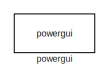
[diagram: root canvas - part 1/3, top center region]
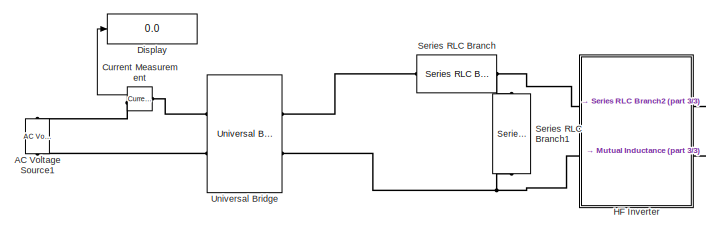
[diagram: root canvas - part 2/3, bottom left region]
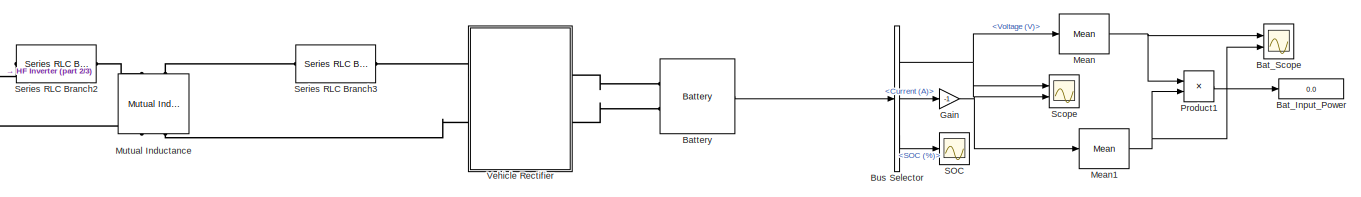
[diagram: root canvas - part 3/3, bottom right region]
MODEL slx_b28d052fbea8
KIND model
CONFIG AbsTol = auto
CONFIG EnableMultiTasking = off
CONFIG FixedStep = auto
CONFIG MaxStep = auto
CONFIG MinStep = auto
CONFIG RelTol = 1e-3
CONFIG SampleTimeConstraint = Unconstrained
CONFIG Solver = VariableStepAuto
CONFIG SolverName = VariableStepAuto
CONFIG StartTime = 0.0
CONFIG StopTime = 5.0
BLOCK [Reference] AC Voltage Source1  REF=powerlib/Electrical
Sources/AC Voltage Source
  Ports = [0, 0, 0, 0, 0, 1, 1]
  SourceBlock = powerlib/Electrical\nSources/AC Voltage Source
  SourceProductBaseCode = PS
  SourceProductName = Simscape Power Systems
  SourceType = AC Voltage Source
BLOCK [Display] Bat_Input_Power
  Decimation = 1
  Ports = [1]
BLOCK [Scope] Bat_Scope
  Floating = off
  NumInputPorts = 2
  Ports = [2]
  ScopeSpecificationString = Simulink.scopes.TimeScopeBlockCfg('CurrentConfiguration', extmgr.ConfigurationSet(extmgr.Configuration('Core','General UI',true,'FigureColor',[1 1 1]),extmgr.Configuration('Core','Source UI',true),extmgr.Configuration('Sources','WiredSimulink',true,'DataLoggingVariableName','ScopeData2'),extmgr.Configuration('Visuals','Time Domain',true,'TimeAxisLabels','All','SerializedDisplays',{struct('MinYLimR...<+2285ch>
BLOCK [Reference] Battery  REF=electricdrivelib/Extra Sources/Battery
  Ports = [0, 1, 0, 0, 0, 2]
  SourceBlock = electricdrivelib/Extra Sources/Battery
  SourceProductBaseCode = PS
  SourceProductName = Simscape Power Systems
  SourceType = Battery
BLOCK [BusSelector] Bus Selector
  OutputAsBus = off
  OutputSignals = Voltage (V),Current (A),SOC (%)
  Ports = [1, 3]
BLOCK [Reference] Current Measurement  REF=powerlib/Measurements/Current Measurement
  Ports = [0, 1, 0, 0, 0, 1, 1]
  SourceBlock = powerlib/Measurements/Current Measurement
  SourceProductBaseCode = PS
  SourceProductName = Simscape Power Systems
  SourceType = Current Measurement
  UserDataPersistent = on
BLOCK [Display] Display
  Decimation = 1
  Ports = [1]
BLOCK [Gain] Gain
  Gain = -1
  OutDataTypeStr = Inherit: Inherit via internal rule
  ParamDataTypeStr = Inherit: Inherit via internal rule
  SaturateOnIntegerOverflow = off
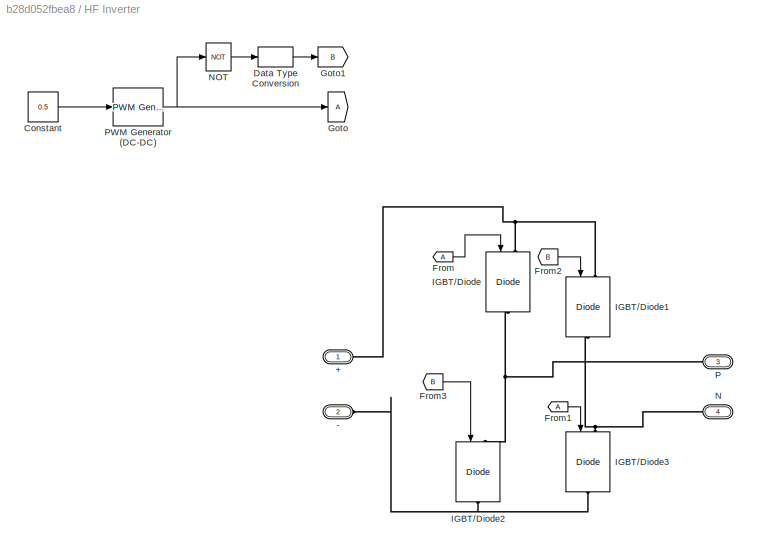
BLOCK [SubSystem] HF Inverter
  Ports = [0, 0, 0, 0, 0, 2, 2]
  RequestExecContextInheritance = off
BLOCK [PMIOPort] HF Inverter/+
  Side = Left
BLOCK [PMIOPort] HF Inverter/-
  Port = 2
  Side = Left
BLOCK [Constant] HF Inverter/Constant
  Value = 0.5
BLOCK [DataTypeConversion] HF Inverter/Data Type Conversion
  OutDataTypeStr = double
  RndMeth = Floor
  SaturateOnIntegerOverflow = off
BLOCK [From] HF Inverter/From
BLOCK [From] HF Inverter/From1
BLOCK [From] HF Inverter/From2
  GotoTag = B
BLOCK [From] HF Inverter/From3
  GotoTag = B
BLOCK [Goto] HF Inverter/Goto
BLOCK [Goto] HF Inverter/Goto1
  GotoTag = B
BLOCK [Reference] HF Inverter/IGBT//Diode  REF=powerlib/Power
Electronics/IGBT//Diode
  Ports = [1, 0, 0, 0, 0, 1, 1]
  SourceBlock = powerlib/Power\nElectronics/IGBT//Diode
  SourceProductBaseCode = PS
  SourceProductName = Simscape Power Systems
  SourceType = IGBT/Diode
BLOCK [Reference] HF Inverter/IGBT//Diode1  REF=powerlib/Power
Electronics/IGBT//Diode
  Ports = [1, 0, 0, 0, 0, 1, 1]
  SourceBlock = powerlib/Power\nElectronics/IGBT//Diode
  SourceProductBaseCode = PS
  SourceProductName = Simscape Power Systems
  SourceType = IGBT/Diode
BLOCK [Reference] HF Inverter/IGBT//Diode2  REF=powerlib/Power
Electronics/IGBT//Diode
  Ports = [1, 0, 0, 0, 0, 1, 1]
  SourceBlock = powerlib/Power\nElectronics/IGBT//Diode
  SourceProductBaseCode = PS
  SourceProductName = Simscape Power Systems
  SourceType = IGBT/Diode
BLOCK [Reference] HF Inverter/IGBT//Diode3  REF=powerlib/Power
Electronics/IGBT//Diode
  Ports = [1, 0, 0, 0, 0, 1, 1]
  SourceBlock = powerlib/Power\nElectronics/IGBT//Diode
  SourceProductBaseCode = PS
  SourceProductName = Simscape Power Systems
  SourceType = IGBT/Diode
BLOCK [PMIOPort] HF Inverter/N
  Port = 4
  Side = Right
BLOCK [Logic] HF Inverter/NOT 
  AllPortsSameDT = off
  IconShape = distinctive
  Operator = NOT
  OutDataTypeStr = boolean
  Ports = [1, 1]
BLOCK [PMIOPort] HF Inverter/P
  Port = 3
  Side = Right
BLOCK [Reference] HF Inverter/PWM Generator (DC-DC)  REF=powerlib_meascontrol/Pulse & Signal
Generators/PWM Generator
(DC-DC)
  Ports = [1, 1]
  SourceBlock = powerlib_meascontrol/Pulse & Signal\nGenerators/PWM Generator\n(DC-DC)
  SourceProductBaseCode = PS
  SourceProductName = Simscape Power Systems
  SourceType = PWM Generator (DC-DC)
BLOCK [Reference] Mean  REF=powerlib_meascontrol/Measurements/Mean
  Ports = [1, 1]
  SourceBlock = powerlib_meascontrol/Measurements/Mean
  SourceProductBaseCode = PS
  SourceProductName = Simscape Power Systems
  SourceType = Mean
BLOCK [Reference] Mean1  REF=powerlib_meascontrol/Measurements/Mean
  Ports = [1, 1]
  SourceBlock = powerlib_meascontrol/Measurements/Mean
  SourceProductBaseCode = PS
  SourceProductName = Simscape Power Systems
  SourceType = Mean
BLOCK [Reference] Mutual Inductance  REF=powerlib/Elements/Mutual Inductance
  AttributesFormatString = \n
  Ports = [0, 0, 0, 0, 0, 2, 2]
  SourceBlock = powerlib/Elements/Mutual Inductance
  SourceProductBaseCode = PS
  SourceProductName = Simscape Power Systems
  SourceType = Mutual Inductance
BLOCK [Product] Product1
  InputSameDT = off
  OutDataTypeStr = Inherit: Inherit via internal rule
  Ports = [2, 1]
  RndMeth = Floor
  SaturateOnIntegerOverflow = off
BLOCK [Scope] SOC
  Floating = off
  NumInputPorts = 1
  Ports = [1]
  ScopeSpecificationString = Simulink.scopes.TimeScopeBlockCfg('CurrentConfiguration', extmgr.ConfigurationSet(extmgr.Configuration('Core','General UI',true,'FigureColor',[1 1 1]),extmgr.Configuration('Core','Source UI',true),extmgr.Configuration('Sources','WiredSimulink',true),extmgr.Configuration('Visuals','Time Domain',true,'TimeAxisLabels','All','SerializedDisplays',{struct('MinYLimReal','79.99778','MaxYLimReal','80.01974...<+1639ch>
BLOCK [Scope] Scope
  Floating = off
  NumInputPorts = 2
  Ports = [2]
  ScopeSpecificationString = Simulink.scopes.TimeScopeBlockCfg('CurrentConfiguration', extmgr.ConfigurationSet(extmgr.Configuration('Core','General UI',true),extmgr.Configuration('Core','Source UI',true),extmgr.Configuration('Sources','WiredSimulink',true,'DataLoggingVariableName','ScopeData1'),extmgr.Configuration('Visuals','Time Domain',true,'SerializedDisplays',{struct('MinYLimReal','430.85531','MaxYLimReal','431.62771','Y...<+2071ch>
BLOCK [Reference] Series RLC Branch  REF=powerlib/Elements/Series RLC Branch
  Ports = [0, 0, 0, 0, 0, 1, 1]
  SourceBlock = powerlib/Elements/Series RLC Branch
  SourceProductBaseCode = PS
  SourceProductName = Simscape Power Systems
  SourceType = Series RLC Branch
BLOCK [Reference] Series RLC Branch1  REF=powerlib/Elements/Series RLC Branch
  Ports = [0, 0, 0, 0, 0, 1, 1]
  SourceBlock = powerlib/Elements/Series RLC Branch
  SourceProductBaseCode = PS
  SourceProductName = Simscape Power Systems
  SourceType = Series RLC Branch
BLOCK [Reference] Series RLC Branch2  REF=powerlib/Elements/Series RLC Branch
  Ports = [0, 0, 0, 0, 0, 1, 1]
  SourceBlock = powerlib/Elements/Series RLC Branch
  SourceProductBaseCode = PS
  SourceProductName = Simscape Power Systems
  SourceType = Series RLC Branch
BLOCK [Reference] Series RLC Branch3  REF=powerlib/Elements/Series RLC Branch
  Ports = [0, 0, 0, 0, 0, 1, 1]
  SourceBlock = powerlib/Elements/Series RLC Branch
  SourceProductBaseCode = PS
  SourceProductName = Simscape Power Systems
  SourceType = Series RLC Branch
BLOCK [Reference] Universal Bridge  REF=powerlib/Power
Electronics/Universal Bridge
  Ports = [0, 0, 0, 0, 0, 2, 2]
  SourceBlock = powerlib/Power\nElectronics/Universal Bridge
  SourceProductBaseCode = PS
  SourceProductName = Simscape Power Systems
  SourceType = Universal Bridge
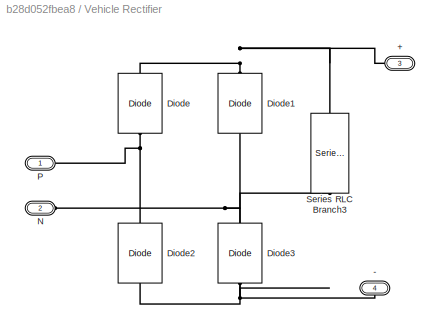
BLOCK [SubSystem] Vehicle Rectifier
  Ports = [0, 0, 0, 0, 0, 2, 2]
  RequestExecContextInheritance = off
BLOCK [PMIOPort] Vehicle Rectifier/+
  Port = 3
  Side = Right
BLOCK [PMIOPort] Vehicle Rectifier/-
  Port = 4
  Side = Right
BLOCK [Reference] Vehicle Rectifier/Diode  REF=powerlib/Power
Electronics/Diode
  Ports = [0, 0, 0, 0, 0, 1, 1]
  SourceBlock = powerlib/Power\nElectronics/Diode
  SourceProductBaseCode = PS
  SourceProductName = Simscape Power Systems
  SourceType = Diode
BLOCK [Reference] Vehicle Rectifier/Diode1  REF=powerlib/Power
Electronics/Diode
  Ports = [0, 0, 0, 0, 0, 1, 1]
  SourceBlock = powerlib/Power\nElectronics/Diode
  SourceProductBaseCode = PS
  SourceProductName = Simscape Power Systems
  SourceType = Diode
BLOCK [Reference] Vehicle Rectifier/Diode2  REF=powerlib/Power
Electronics/Diode
  Ports = [0, 0, 0, 0, 0, 1, 1]
  SourceBlock = powerlib/Power\nElectronics/Diode
  SourceProductBaseCode = PS
  SourceProductName = Simscape Power Systems
  SourceType = Diode
BLOCK [Reference] Vehicle Rectifier/Diode3  REF=powerlib/Power
Electronics/Diode
  Ports = [0, 0, 0, 0, 0, 1, 1]
  SourceBlock = powerlib/Power\nElectronics/Diode
  SourceProductBaseCode = PS
  SourceProductName = Simscape Power Systems
  SourceType = Diode
BLOCK [PMIOPort] Vehicle Rectifier/N
  Port = 2
  Side = Left
BLOCK [PMIOPort] Vehicle Rectifier/P
  Side = Left
BLOCK [Reference] Vehicle Rectifier/Series RLC Branch3  REF=powerlib/Elements/Series RLC Branch
  Ports = [0, 0, 0, 0, 0, 1, 1]
  SourceBlock = powerlib/Elements/Series RLC Branch
  SourceProductBaseCode = PS
  SourceProductName = Simscape Power Systems
  SourceType = Series RLC Branch
BLOCK [Reference] powergui  REF=powerlib/powergui
  Ports = []
  Priority = 1
  SourceBlock = powerlib/powergui
  SourceProductBaseCode = PS
  SourceProductName = Simscape Power Systems
  SourceType = PSB option menu block
LINE Battery:1 -> Bus Selector:1
NET Bus Selector:1 -> Mean:1, Scope:1
LINE Bus Selector:2 -> Gain:1
LINE Bus Selector:3 -> SOC:1
LINE Current Measurement:1 -> Display:1
NET Gain:1 -> Mean1:1, Scope:2
LINE HF Inverter/Constant:1 -> HF Inverter/PWM Generator (DC-DC):1
LINE HF Inverter/Data Type Conversion:1 -> HF Inverter/Goto1:1
LINE HF Inverter/From1:1 -> HF Inverter/IGBT//Diode3:1
LINE HF Inverter/From2:1 -> HF Inverter/IGBT//Diode1:1
LINE HF Inverter/From3:1 -> HF Inverter/IGBT//Diode2:1
LINE HF Inverter/From:1 -> HF Inverter/IGBT//Diode:1
LINE HF Inverter/NOT :1 -> HF Inverter/Data Type Conversion:1
NET HF Inverter/PWM Generator (DC-DC):1 -> HF Inverter/Goto:1, HF Inverter/NOT :1
NET Mean1:1 -> Bat_Scope:2, Product1:2
NET Mean:1 -> Bat_Scope:1, Product1:1
LINE Product1:1 -> Bat_Input_Power:1
PLINE AC Voltage Source1:LConn1 -- Universal Bridge:LConn2
PLINE AC Voltage Source1:RConn1 -- Current Measurement:RConn1
PLINE Battery:LConn1 -- Vehicle Rectifier:RConn1
PLINE Battery:LConn2 -- Vehicle Rectifier:RConn2
PLINE Current Measurement:LConn1 -- Universal Bridge:LConn1
PNET net1: HF Inverter/+:RConn1 -- HF Inverter/IGBT//Diode1:LConn1 -- HF Inverter/IGBT//Diode:LConn1
PNET net2: HF Inverter/-:RConn1 -- HF Inverter/IGBT//Diode2:RConn1 -- HF Inverter/IGBT//Diode3:RConn1
PNET net3: HF Inverter/IGBT//Diode1:RConn1 -- HF Inverter/IGBT//Diode3:LConn1 -- HF Inverter/N:RConn1
PNET net4: HF Inverter/IGBT//Diode2:LConn1 -- HF Inverter/IGBT//Diode:RConn1 -- HF Inverter/P:RConn1
PNET net5: HF Inverter:LConn1 -- Series RLC Branch1:LConn1 -- Series RLC Branch:RConn1
PNET net6: HF Inverter:LConn2 -- Series RLC Branch1:RConn1 -- Universal Bridge:RConn2
PLINE HF Inverter:RConn1 -- Series RLC Branch2:LConn1
PLINE HF Inverter:RConn2 -- Mutual Inductance:RConn1
PLINE Mutual Inductance:LConn1 -- Series RLC Branch2:RConn1
PLINE Mutual Inductance:LConn2 -- Series RLC Branch3:LConn1
PLINE Mutual Inductance:RConn2 -- Vehicle Rectifier:LConn2
PLINE Series RLC Branch3:RConn1 -- Vehicle Rectifier:LConn1
PLINE Series RLC Branch:LConn1 -- Universal Bridge:RConn1
PNET net7: Vehicle Rectifier/+:RConn1 -- Vehicle Rectifier/Diode1:RConn1 -- Vehicle Rectifier/Diode:RConn1 -- Vehicle Rectifier/Series RLC Branch3:LConn1
PNET net8: Vehicle Rectifier/-:RConn1 -- Vehicle Rectifier/Diode2:LConn1 -- Vehicle Rectifier/Diode3:LConn1 -- Vehicle Rectifier/Series RLC Branch3:RConn1
PNET net9: Vehicle Rectifier/Diode1:LConn1 -- Vehicle Rectifier/Diode3:RConn1 -- Vehicle Rectifier/N:RConn1
PNET net10: Vehicle Rectifier/Diode2:RConn1 -- Vehicle Rectifier/Diode:LConn1 -- Vehicle Rectifier/P:RConn1
note: NET lines group one-source signal fan-out (src -> all destinations, sorted); 1:1 wires keep LINE; PNET lines group multi-terminal physical nets as a canonical sorted terminal list (undirected conserving connections); 2-terminal nets keep the pairwise PLINE form
